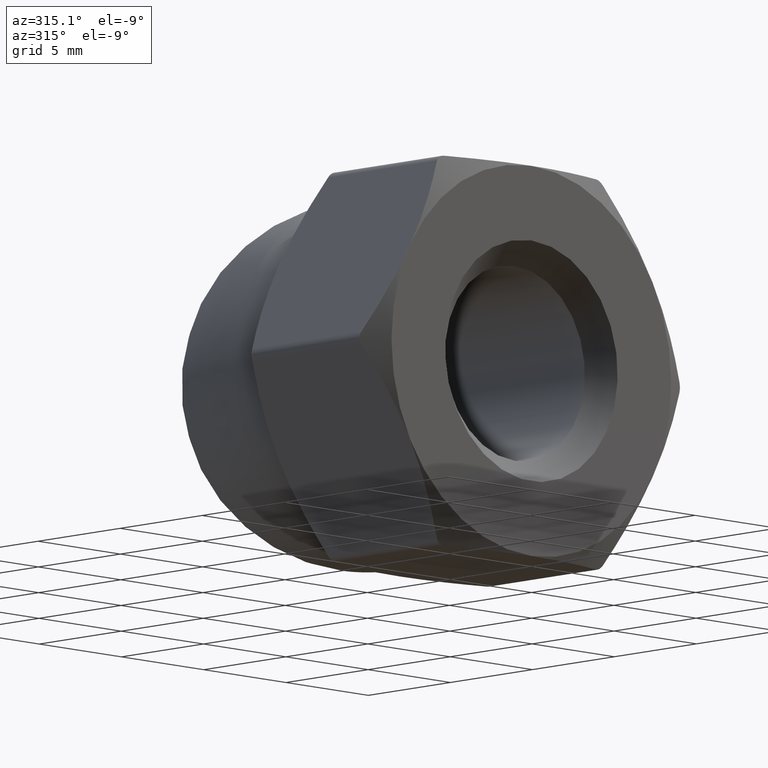
[diagram: clean part render]
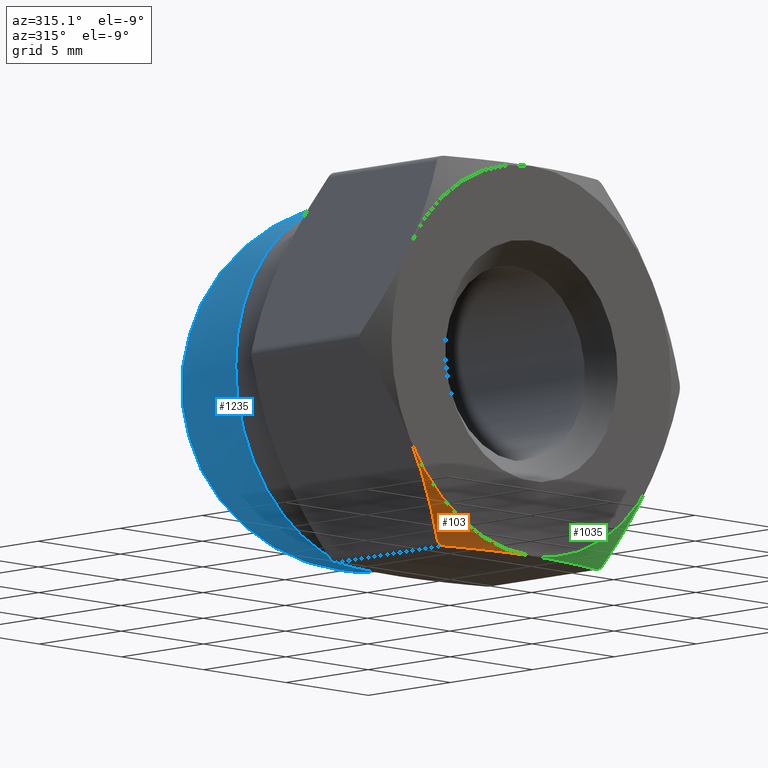
[diagram: same view with three faces highlighted in distinct colors, each labeled with its STEP entity id]
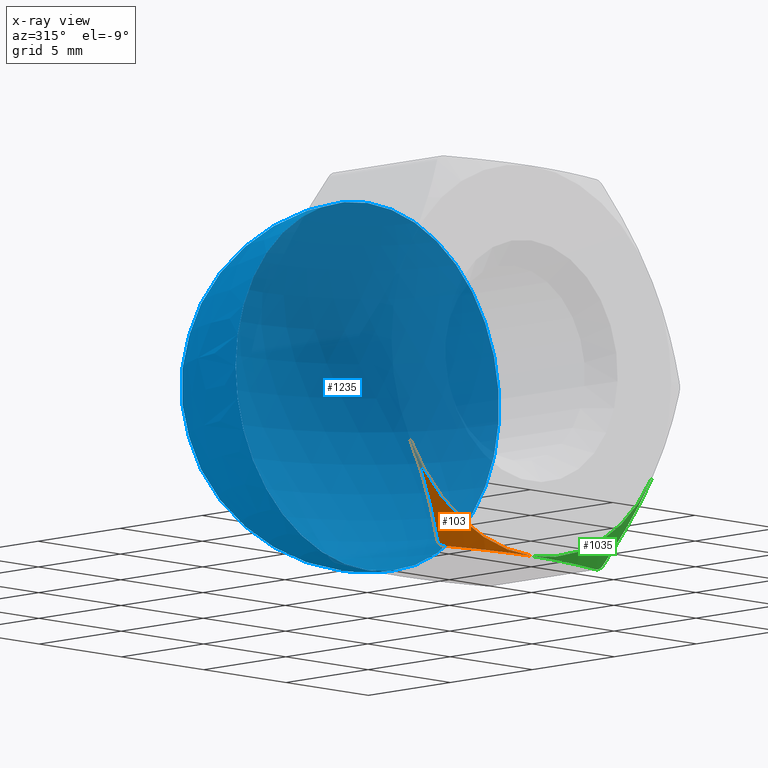
[diagram: x-ray of the same camera — body ghosted, the three highlighted faces saturated]
A machine part, auxiliary view with three faces highlighted in distinct colors.
The next image is the same camera in x-ray (body ghosted, the three faces saturated) — at least one of them is partly hidden behind the body in this view.
Their STEP definitions:

[orange] entity #103 — the highlighted conical surface has half-angle 60 deg.
#18 = VERTEX_POINT ( 'NONE', #99 ) ;
#31 = CARTESIAN_POINT ( 'NONE',  ( -3.095199511053134500, 0.2975784345721721500, -8.499999999999996400 ) ) ;
#40 = CARTESIAN_POINT ( 'NONE',  ( -6.386134799816455000, 0.1229494373703071100, -5.938890062734199800 ) ) ;
#44 = CIRCLE ( 'NONE', #457, 8.500000000000000000 ) ;
#65 = CARTESIAN_POINT ( 'NONE',  ( -7.361215932167728400, 0.0000000000000000000, -4.250000000000000000 ) ) ;
#99 = CARTESIAN_POINT ( 'NONE',  ( -5.051814855409229000, 0.6777214052601841000, -8.249999999999996400 ) ) ;
#103 = ADVANCED_FACE ( 'NONE', ( #674 ), #361, .T. ) ;
#128 = CARTESIAN_POINT ( 'NONE',  ( -0.7794072466125292500, -9.554531645028507800E-016, -8.499999999999998200 ) ) ;
#139 = VERTEX_POINT ( 'NONE', #423 ) ;
#157 = B_SPLINE_CURVE_WITH_KNOTS ( 'NONE', 3,
 ( #1076, #655, #340, #877, #40, #771, #1182, #442 ),
 .UNSPECIFIED., .F., .F.,
 ( 4, 2, 2, 4 ),
 ( 0.004965801523355312800, 0.006128321858666291700, 0.007290842193977269600, 0.009615882864599226500 ),
 .UNSPECIFIED. ) ;
#186 = ORIENTED_EDGE ( 'NONE', *, *, #922, .T. ) ;
#267 = CARTESIAN_POINT ( 'NONE',  ( -4.618802153517093800, 0.6777214052601756600, -8.499999999999996400 ) ) ;
#336 = CARTESIAN_POINT ( 'NONE',  ( 0.0000000000000000000, 0.0000000000000000000, 0.0000000000000000000 ) ) ;
#340 = CARTESIAN_POINT ( 'NONE',  ( -6.968807060097655700, 0.01584293608895266000, -4.929672103766166400 ) ) ;
#349 = DIRECTION ( 'NONE',  ( 0.0000000000000000000, 0.0000000000000000000, 1.000000000000000000 ) ) ;
#359 = CARTESIAN_POINT ( 'NONE',  ( -4.945428879883893500, 0.7144879095692093800, -8.388681016163085100 ) ) ;
#361 = CONICAL_SURFACE ( 'NONE', #377, 9.814954576223639600, 1.047197551196603400 ) ;
#377 = AXIS2_PLACEMENT_3D ( 'NONE', #1362, #835, #944 ) ;
#423 = CARTESIAN_POINT ( 'NONE',  ( -4.618802153517093800, 0.6777214052601756600, -8.499999999999996400 ) ) ;
#436 = CARTESIAN_POINT ( 'NONE',  ( -3.865219095910880300, 0.4699907442509849200, -8.499999999999994700 ) ) ;
#442 = CARTESIAN_POINT ( 'NONE',  ( -5.051814855409229000, 0.6777214052601841000, -8.249999999999996400 ) ) ;
#457 = AXIS2_PLACEMENT_3D ( 'NONE', #336, #968, #349 ) ;
#465 = CARTESIAN_POINT ( 'NONE',  ( -5.008871324508005400, 0.7013967996845662500, -8.324380377377318400 ) ) ;
#471 = ORIENTED_EDGE ( 'NONE', *, *, #898, .T. ) ;
#548 = CARTESIAN_POINT ( 'NONE',  ( -4.618802153517093800, 0.6777214052601756600, -8.499999999999996400 ) ) ;
#555 = CARTESIAN_POINT ( 'NONE',  ( -3.004629197474318900E-015, 0.0000000000000000000, -8.500000000000000000 ) ) ;
#573 = CARTESIAN_POINT ( 'NONE',  ( -4.792950042764957200, 0.7145742308574980500, -8.476896700946019400 ) ) ;
#599 = CARTESIAN_POINT ( 'NONE',  ( -3.004629197474318900E-015, 0.0000000000000000000, -8.500000000000000000 ) ) ;
#655 = CARTESIAN_POINT ( 'NONE',  ( -7.165473669288212800, -4.476780884475789300E-015, -4.589035544495828000 ) ) ;
#674 = FACE_OUTER_BOUND ( 'NONE', #980, .T. ) ;
#684 = B_SPLINE_CURVE_WITH_KNOTS ( 'NONE', 3,
 ( #1221, #465, #359, #573, #781, #267 ),
 .UNSPECIFIED., .F., .F.,
 ( 4, 2, 4 ),
 ( 0.0000000000000000000, 0.0002637416435128123300, 0.0005274832870256246500 ),
 .UNSPECIFIED. ) ;
#753 = CARTESIAN_POINT ( 'NONE',  ( -1.554076649557146300, 0.06285836280121937000, -8.499999999999998200 ) ) ;
#771 = CARTESIAN_POINT ( 'NONE',  ( -5.809205748559695500, 0.2994004548595254300, -6.938160491873418300 ) ) ;
#781 = CARTESIAN_POINT ( 'NONE',  ( -4.704720040657662100, 0.7014052969136571600, -8.499999999999989300 ) ) ;
#835 = DIRECTION ( 'NONE',  ( -0.0000000000000000000, 1.000000000000000000, -0.0000000000000000000 ) ) ;
#877 = CARTESIAN_POINT ( 'NONE',  ( -6.579538832769371100, 0.07734579632662048900, -5.603904451271025000 ) ) ;
#898 = EDGE_CURVE ( 'NONE', #1230, #1162, #44, .T. ) ;
#922 = EDGE_CURVE ( 'NONE', #139, #1230, #1138, .T. ) ;
#944 = DIRECTION ( 'NONE',  ( 0.0000000000000000000, 0.0000000000000000000, -1.000000000000000000 ) ) ;
#968 = DIRECTION ( 'NONE',  ( 0.0000000000000000000, 1.000000000000000000, 0.0000000000000000000 ) ) ;
#980 = EDGE_LOOP ( 'NONE', ( #1353, #983, #186, #471 ) ) ;
#983 = ORIENTED_EDGE ( 'NONE', *, *, #1113, .T. ) ;
#997 = EDGE_CURVE ( 'NONE', #1162, #18, #157, .T. ) ;
#1076 = CARTESIAN_POINT ( 'NONE',  ( -7.361215932167728400, 0.0000000000000000000, -4.250000000000000000 ) ) ;
#1113 = EDGE_CURVE ( 'NONE', #18, #139, #684, .T. ) ;
#1138 = B_SPLINE_CURVE_WITH_KNOTS ( 'NONE', 3,
 ( #548, #436, #31, #753, #128, #555 ),
 .UNSPECIFIED., .F., .F.,
 ( 4, 2, 4 ),
 ( 0.009054172410498525000, 0.01138718849256199200, 0.01372020457462546000 ),
 .UNSPECIFIED. ) ;
#1162 = VERTEX_POINT ( 'NONE', #65 ) ;
#1182 = CARTESIAN_POINT ( 'NONE',  ( -5.428956315356690400, 0.4697978221113829300, -7.596771829730287500 ) ) ;
#1221 = CARTESIAN_POINT ( 'NONE',  ( -5.051814855409229000, 0.6777214052601841000, -8.249999999999996400 ) ) ;
#1230 = VERTEX_POINT ( 'NONE', #599 ) ;
#1353 = ORIENTED_EDGE ( 'NONE', *, *, #997, .T. ) ;
#1362 = CARTESIAN_POINT ( 'NONE',  ( 0.0000000000000000000, 0.7591893785548380300, 0.0000000000000000000 ) ) ;

[blue] entity #1235 — the highlighted spherical surface has radius 8 mm.
#205 = DIRECTION ( 'NONE',  ( -1.683889348827610500E-016, 1.000000000000000000, -0.0000000000000000000 ) ) ;
#233 = VERTEX_POINT ( 'NONE', #501 ) ;
#266 = CIRCLE ( 'NONE', #801, 8.000000000000001800 ) ;
#371 = CARTESIAN_POINT ( 'NONE',  ( 6.123233995736766300E-016, 9.999999999999998200, 0.0000000000000000000 ) ) ;
#461 = ORIENTED_EDGE ( 'NONE', *, *, #640, .T. ) ;
#474 = EDGE_LOOP ( 'NONE', ( #461 ) ) ;
#488 = CARTESIAN_POINT ( 'NONE',  ( 6.123233995736760400E-016, 10.00000000000000200, 0.0000000000000000000 ) ) ;
#501 = CARTESIAN_POINT ( 'NONE',  ( -8.000000000000001800, 10.00000000000000000, 0.0000000000000000000 ) ) ;
#509 = DIRECTION ( 'NONE',  ( -1.000000000000000000, -2.168404344971008400E-016, 0.0000000000000000000 ) ) ;
#522 = SPHERICAL_SURFACE ( 'NONE', #1129, 8.000000000000000000 ) ;
#640 = EDGE_CURVE ( 'NONE', #233, #233, #266, .T. ) ;
#801 = AXIS2_PLACEMENT_3D ( 'NONE', #488, #205, #509 ) ;
#977 = FACE_OUTER_BOUND ( 'NONE', #474, .T. ) ;
#1129 = AXIS2_PLACEMENT_3D ( 'NONE', #371, #1232, #1136 ) ;
#1136 = DIRECTION ( 'NONE',  ( 1.000000000000000000, 2.168404344971008900E-016, 0.0000000000000000000 ) ) ;
#1232 = DIRECTION ( 'NONE',  ( 0.0000000000000000000, 0.0000000000000000000, -1.000000000000000000 ) ) ;
#1235 = ADVANCED_FACE ( 'NONE', ( #977 ), #522, .T. ) ;

[green] entity #1035 — the highlighted conical surface has half-angle 60 deg.
#33 = CARTESIAN_POINT ( 'NONE',  ( 0.0000000000000000000, 0.0000000000000000000, 0.0000000000000000000 ) ) ;
#77 = CARTESIAN_POINT ( 'NONE',  ( 4.618802153517005000, 0.6777214052601855400, -8.500000000000000000 ) ) ;
#90 = CONICAL_SURFACE ( 'NONE', #92, 9.814954576223639600, 1.047197551196603400 ) ;
#92 = AXIS2_PLACEMENT_3D ( 'NONE', #1087, #1091, #448 ) ;
#122 = CIRCLE ( 'NONE', #590, 8.500000000000000000 ) ;
#150 = ORIENTED_EDGE ( 'NONE', *, *, #886, .T. ) ;
#212 = CARTESIAN_POINT ( 'NONE',  ( 4.618802153517005000, 0.6777214052601855400, -8.500000000000000000 ) ) ;
#229 = DIRECTION ( 'NONE',  ( 0.0000000000000000000, 0.0000000000000000000, -1.000000000000000000 ) ) ;
#236 = EDGE_CURVE ( 'NONE', #1230, #747, #1297, .T. ) ;
#325 = CARTESIAN_POINT ( 'NONE',  ( 1.569622573620889700, 0.06444551714245436200, -8.499999999999996400 ) ) ;
#386 = EDGE_CURVE ( 'NONE', #1230, #447, #122, .T. ) ;
#420 = CARTESIAN_POINT ( 'NONE',  ( 0.7795462929344202400, -9.834052517622423000E-016, -8.499999999999998200 ) ) ;
#447 = VERTEX_POINT ( 'NONE', #1187 ) ;
#448 = DIRECTION ( 'NONE',  ( 0.0000000000000000000, 0.0000000000000000000, -1.000000000000000000 ) ) ;
#478 = CARTESIAN_POINT ( 'NONE',  ( 4.704689215319455700, 0.7013967996845683600, -8.499999999999998200 ) ) ;
#525 = CARTESIAN_POINT ( 'NONE',  ( 3.870871067308887500, 0.4715487513514492500, -8.500000000000000000 ) ) ;
#546 = EDGE_CURVE ( 'NONE', #747, #613, #890, .T. ) ;
#576 = EDGE_LOOP ( 'NONE', ( #1370, #1115, #150, #1309 ) ) ;
#590 = AXIS2_PLACEMENT_3D ( 'NONE', #33, #754, #229 ) ;
#599 = CARTESIAN_POINT ( 'NONE',  ( -3.004629197474318900E-015, 0.0000000000000000000, -8.500000000000000000 ) ) ;
#613 = VERTEX_POINT ( 'NONE', #929 ) ;
#628 = FACE_OUTER_BOUND ( 'NONE', #576, .T. ) ;
#637 = CARTESIAN_POINT ( 'NONE',  ( 6.579776135164753000, 0.06385438222695755100, -5.603493431465461000 ) ) ;
#696 = CARTESIAN_POINT ( 'NONE',  ( 4.792096424299556300, 0.7144879095692101600, -8.477207550670213400 ) ) ;
#739 = CARTESIAN_POINT ( 'NONE',  ( 6.968202863339996600, -5.424398994216539400E-015, -4.930718603248196000 ) ) ;
#747 = VERTEX_POINT ( 'NONE', #212 ) ;
#750 = CARTESIAN_POINT ( 'NONE',  ( 5.810627609607210300, 0.2988368171653446000, -6.935697756297818400 ) ) ;
#754 = DIRECTION ( 'NONE',  ( 0.0000000000000000000, -1.000000000000000000, 0.0000000000000000000 ) ) ;
#850 = CARTESIAN_POINT ( 'NONE',  ( 7.361215932167728400, 0.0000000000000000000, -4.250000000000001800 ) ) ;
#855 = CARTESIAN_POINT ( 'NONE',  ( 4.618802153517005000, 0.6777214052601855400, -8.500000000000000000 ) ) ;
#886 = EDGE_CURVE ( 'NONE', #613, #447, #935, .T. ) ;
#890 = B_SPLINE_CURVE_WITH_KNOTS ( 'NONE', 3,
 ( #77, #478, #696, #1024, #1331, #1004 ),
 .UNSPECIFIED., .F., .F.,
 ( 4, 2, 4 ),
 ( 8.741117365843378200E-019, 0.0002637416435128276100, 0.0005274832870256543600 ),
 .UNSPECIFIED. ) ;
#929 = CARTESIAN_POINT ( 'NONE',  ( 5.051814855409199700, 0.6777214052601982000, -8.250000000000042600 ) ) ;
#935 = B_SPLINE_CURVE_WITH_KNOTS ( 'NONE', 3,
 ( #1294, #1171, #750, #637, #739, #850 ),
 .UNSPECIFIED., .F., .F.,
 ( 4, 2, 4 ),
 ( 0.0002975640376526795300, 0.002631682780503996300, 0.004965801523355313700 ),
 .UNSPECIFIED. ) ;
#1004 = CARTESIAN_POINT ( 'NONE',  ( 5.051814855409199700, 0.6777214052601982000, -8.250000000000042600 ) ) ;
#1024 = CARTESIAN_POINT ( 'NONE',  ( 4.944732866893292400, 0.7145742308574967200, -8.389264846577161100 ) ) ;
#1035 = ADVANCED_FACE ( 'NONE', ( #628 ), #90, .T. ) ;
#1087 = CARTESIAN_POINT ( 'NONE',  ( 0.0000000000000000000, 0.7591893785548380300, 0.0000000000000000000 ) ) ;
#1091 = DIRECTION ( 'NONE',  ( -0.0000000000000000000, 1.000000000000000000, -0.0000000000000000000 ) ) ;
#1115 = ORIENTED_EDGE ( 'NONE', *, *, #546, .T. ) ;
#1168 = CARTESIAN_POINT ( 'NONE',  ( 3.113225581296841200, 0.3011216162847453700, -8.499999999999996400 ) ) ;
#1171 = CARTESIAN_POINT ( 'NONE',  ( 5.429858104811359900, 0.4693006524427712500, -7.595209884577068100 ) ) ;
#1187 = CARTESIAN_POINT ( 'NONE',  ( 7.361215932167728400, 0.0000000000000000000, -4.250000000000001800 ) ) ;
#1230 = VERTEX_POINT ( 'NONE', #599 ) ;
#1278 = CARTESIAN_POINT ( 'NONE',  ( -3.004629197474318900E-015, 0.0000000000000000000, -8.500000000000000000 ) ) ;
#1294 = CARTESIAN_POINT ( 'NONE',  ( 5.051814855409199700, 0.6777214052601982000, -8.250000000000042600 ) ) ;
#1297 = B_SPLINE_CURVE_WITH_KNOTS ( 'NONE', 3,
 ( #1278, #420, #325, #1168, #525, #855 ),
 .UNSPECIFIED., .F., .F.,
 ( 4, 2, 4 ),
 ( 0.01372020457462546000, 0.01605363686696481200, 0.01838706915930416600 ),
 .UNSPECIFIED. ) ;
#1309 = ORIENTED_EDGE ( 'NONE', *, *, #386, .F. ) ;
#1331 = CARTESIAN_POINT ( 'NONE',  ( 5.008855911838874200, 0.7014052969136649300, -8.324407072903312600 ) ) ;
#1370 = ORIENTED_EDGE ( 'NONE', *, *, #236, .T. ) ;